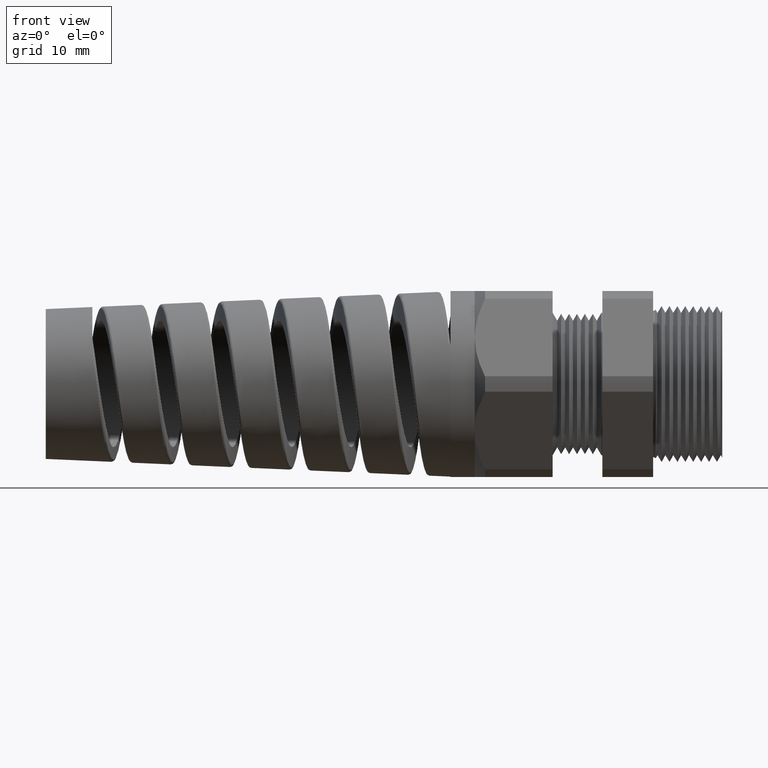
[diagram: clean part render]
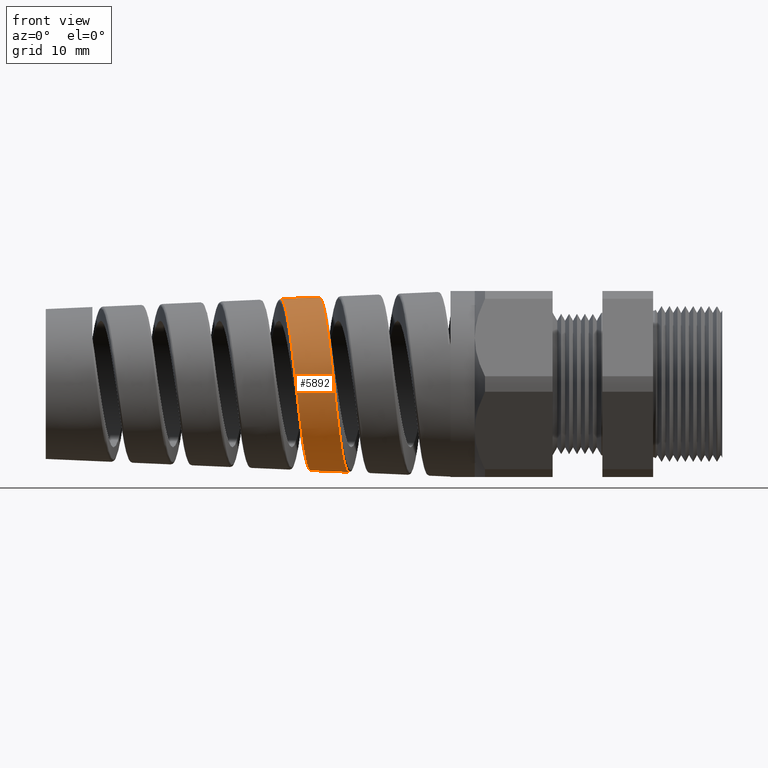
[diagram: same view with one face highlighted and labeled with its STEP entity id]
A machine part, front view. The second image highlights one B-rep face of the part: STEP entity #5892.
In plain terms, the highlighted conical surface has half-angle 2.5 deg.
Its self-contained STEP definition (entity closure, byte-faithful):
#3026 = DIRECTION ( 'NONE',  ( 0.9990482215818576900, 5.341834311772762600E-018, 0.04361938736533631900 ) ) ;
#3027 = VECTOR ( 'NONE', #3026, 39.37007874015748100 ) ;
#3028 = CARTESIAN_POINT ( 'NONE',  ( -1.290000000000000300, 5.755839955992558400E-017, 0.4699999999999998600 ) ) ;
#3029 = LINE ( 'NONE', #3028, #3027 ) ;
#3030 = CARTESIAN_POINT ( 'NONE',  ( -2.190422081872461600, 1.184146767082549900E-015, 0.4306867228898024200 ) ) ;
#3032 = CARTESIAN_POINT ( 'NONE',  ( -1.998019104592909700, 7.933944651903205000E-017, 0.4390872182962327600 ) ) ;
#3037 = CARTESIAN_POINT ( 'NONE',  ( -2.040376159136990000, -4.913763605612225300E-013, -0.4372378693560109400 ) ) ;
#3060 = DIRECTION ( 'NONE',  ( 0.9990482215818576900, 0.0000000000000000000, -0.04361938736533631900 ) ) ;
#3061 = VECTOR ( 'NONE', #3060, 39.37007874015748100 ) ;
#3062 = CARTESIAN_POINT ( 'NONE',  ( -1.290000000000000300, 0.0000000000000000000, -0.4699999999999998600 ) ) ;
#3066 = LINE ( 'NONE', #3062, #3061 ) ;
#3587 = CARTESIAN_POINT ( 'NONE',  ( -2.108865754335762500, -0.4310992905353262500, -0.05938815593787732200 ) ) ;
#3588 = CARTESIAN_POINT ( 'NONE',  ( -2.111962484405446500, -0.4339242168521358400, -0.03124277110531223400 ) ) ;
#3589 = CARTESIAN_POINT ( 'NONE',  ( -2.116667477873672700, -0.4339880762209120700, 0.01152242108114413500 ) ) ;
#3590 = CARTESIAN_POINT ( 'NONE',  ( -2.118249286401795700, -0.4332975927486118500, 0.02589861055870568800 ) ) ;
#3591 = CARTESIAN_POINT ( 'NONE',  ( -2.121380137784178100, -0.4305350802282675300, 0.05420791046270152800 ) ) ;
#3592 = CARTESIAN_POINT ( 'NONE',  ( -2.124495181993542000, -0.4263985499385738500, 0.08222876221542883800 ) ) ;
#3593 = CARTESIAN_POINT ( 'NONE',  ( -2.127609292634403500, -0.4195622912235754700, 0.1096794502603256500 ) ) ;
#3594 = CARTESIAN_POINT ( 'NONE',  ( -2.130737394845184900, -0.4113616899772706300, 0.1368403622550556900 ) ) ;
#3595 = CARTESIAN_POINT ( 'NONE',  ( -2.132314271634450500, -0.4065587408215783900, 0.1503247407683145400 ) ) ;
#3596 = CARTESIAN_POINT ( 'NONE',  ( -2.137047800702293700, -0.3901609194360512500, 0.1899923406717662600 ) ) ;
#3597 = CARTESIAN_POINT ( 'NONE',  ( -2.140156315622508700, -0.3768007105333035500, 0.2149604799724025800 ) ) ;
#3598 = CARTESIAN_POINT ( 'NONE',  ( -2.144838974379418900, -0.3532408253519021500, 0.2502605943913297500 ) ) ;
#3599 = CARTESIAN_POINT ( 'NONE',  ( -2.146403045383445300, -0.3447966953466810600, 0.2616660443374256900 ) ) ;
#3600 = CARTESIAN_POINT ( 'NONE',  ( -2.149553490386110000, -0.3266958687762742700, 0.2837334951669848200 ) ) ;
#3601 = CARTESIAN_POINT ( 'NONE',  ( -2.151139048673719900, -0.3170365086425141500, 0.2943825828929009200 ) ) ;
#3602 = CARTESIAN_POINT ( 'NONE',  ( -2.155847862602705300, -0.2868757902276800100, 0.3245049161933941100 ) ) ;
#3603 = CARTESIAN_POINT ( 'NONE',  ( -2.158959333572341600, -0.2650068624553128000, 0.3424234415652227000 ) ) ;
#3604 = CARTESIAN_POINT ( 'NONE',  ( -2.163670311685681900, -0.2295721379596030700, 0.3660556015992726400 ) ) ;
#3605 = CARTESIAN_POINT ( 'NONE',  ( -2.165255746754934500, -0.2172532667753416800, 0.3734218222097883100 ) ) ;
#3606 = CARTESIAN_POINT ( 'NONE',  ( -2.168416906576895500, -0.1920282746732975800, 0.3868446853781976100 ) ) ;
#3607 = CARTESIAN_POINT ( 'NONE',  ( -2.169986297097260300, -0.1791746372514615400, 0.3928830782137036600 ) ) ;
#3608 = CARTESIAN_POINT ( 'NONE',  ( -2.174684075409793600, -0.1399126208832450500, 0.4090341008594480200 ) ) ;
#3609 = CARTESIAN_POINT ( 'NONE',  ( -2.177801617049919300, -0.1128097801967371400, 0.4172013662084843000 ) ) ;
#3610 = CARTESIAN_POINT ( 'NONE',  ( -2.182551269234198600, -0.07073011138817542100, 0.4254276551805641300 ) ) ;
#3611 = CARTESIAN_POINT ( 'NONE',  ( -2.184139056873407800, -0.05653242180804959900, 0.4274727720997129600 ) ) ;
#3612 = CARTESIAN_POINT ( 'NONE',  ( -2.187286576149573700, -0.02826916001122227500, 0.4301294114469355100 ) ) ;
#3613 = CARTESIAN_POINT ( 'NONE',  ( -2.188854006380488700, -0.01413529792869920200, 0.4307551865443337600 ) ) ;
#3614 = CARTESIAN_POINT ( 'NONE',  ( -2.190422081872461600, 1.184146767082549900E-015, 0.4306867228898024200 ) ) ;
#3615 = B_SPLINE_CURVE_WITH_KNOTS ( 'NONE', 3,
 ( #3614, #3613, #3612, #3611, #3610, #3609, #3608, #3607, #3606, #3605, #3604, #3603, #3602, #3601, #3600, #3599, #3598, #3597, #3596, #3595, #3594, #3593, #3592, #3591, #3590, #3589, #3588, #3587, #3661, #3660, #3659, #3658, #3657, #3656, #3655, #3654, #3653, #3652, #3651, #3650, #3649, #3648, #3647, #3646, #3645, #3644, #3643 ),
 .UNSPECIFIED., .F., .F.,
 ( 4, 2, 2, 2, 2, 2, 2, 2, 2, 2, 2, 1, 2, 2, 2, 2, 2, 2, 2, 2, 2, 2, 2, 4 ),
 ( 0.2109298441767726300, 0.2120282145463552600, 0.2131265849159378600, 0.2153233256551031200, 0.2164216960246857500, 0.2175200663942683500, 0.2197168071334336100, 0.2208151775030162100, 0.2219135478725988400, 0.2241102886117640700, 0.2252086589813467000, 0.2263070293509293300, 0.2274053997205119400, 0.2285037700900945700, 0.2307005108292598000, 0.2328972515684250600, 0.2350939923075902900, 0.2361923626771728900, 0.2372907330467555200, 0.2394874737859207500, 0.2416842145250859800, 0.2427825848946686100, 0.2438809552642512400, 0.2460776960034164700 ),
 .UNSPECIFIED. ) ;
#3616 = DIRECTION ( 'NONE',  ( 0.0000000000000000000, 0.0000000000000000000, -1.000000000000000000 ) ) ;
#3617 = DIRECTION ( 'NONE',  ( 1.000000000000000000, 0.0000000000000000000, 0.0000000000000000000 ) ) ;
#3618 = AXIS2_PLACEMENT_3D ( 'NONE', #3619, #3617, #3616 ) ;
#3619 = CARTESIAN_POINT ( 'NONE',  ( -1.290000000000000300, 0.0000000000000000000, 0.0000000000000000000 ) ) ;
#3620 = CONICAL_SURFACE ( 'NONE', #3618, 0.4699999999999998600, 0.04363323129985855600 ) ;
#3621 = FACE_OUTER_BOUND ( 'NONE', #5893, .T. ) ;
#3622 = CARTESIAN_POINT ( 'NONE',  ( -1.897797244332209300, -0.3830914574320719000, -0.2238524883016141400 ) ) ;
#3623 = CARTESIAN_POINT ( 'NONE',  ( -1.896245679013693700, -0.3756682976446125700, -0.2362211568054130600 ) ) ;
#3624 = CARTESIAN_POINT ( 'NONE',  ( -1.893144867146033600, -0.3596576736896838200, -0.2601798899277995000 ) ) ;
#3625 = CARTESIAN_POINT ( 'NONE',  ( -1.891594904533656600, -0.3510702741025748000, -0.2717699045867033600 ) ) ;
#3626 = CARTESIAN_POINT ( 'NONE',  ( -1.888481408340720400, -0.3327163368546226000, -0.2941593391284260700 ) ) ;
#3627 = CARTESIAN_POINT ( 'NONE',  ( -1.886909655005089900, -0.3228939517042446700, -0.3050126219308472700 ) ) ;
#3628 = CARTESIAN_POINT ( 'NONE',  ( -1.882216081190516600, -0.2920232533576184700, -0.3359068590343412000 ) ) ;
#3629 = CARTESIAN_POINT ( 'NONE',  ( -1.879132593738874100, -0.2697243982762036500, -0.3542090789934123100 ) ) ;
#3630 = CARTESIAN_POINT ( 'NONE',  ( -1.874484044041750700, -0.2337777799055847400, -0.3783111318119861100 ) ) ;
#3631 = CARTESIAN_POINT ( 'NONE',  ( -1.872930761560817900, -0.2213762358437757200, -0.3857826746174919900 ) ) ;
#3632 = CARTESIAN_POINT ( 'NONE',  ( -1.869801860592672900, -0.1957115818841674800, -0.3995674730077413100 ) ) ;
#3633 = CARTESIAN_POINT ( 'NONE',  ( -1.868233117675882600, -0.1825017144034997200, -0.4058428936238197000 ) ) ;
#3634 = CARTESIAN_POINT ( 'NONE',  ( -1.863573674052380100, -0.1424290013263452600, -0.4225381395353592900 ) ) ;
#3635 = CARTESIAN_POINT ( 'NONE',  ( -1.860497873781145900, -0.1148769116553653300, -0.4309855771844385800 ) ) ;
#3636 = CARTESIAN_POINT ( 'NONE',  ( -1.855841701001245100, -0.07230080561659504900, -0.4396245785010841600 ) ) ;
#3637 = CARTESIAN_POINT ( 'NONE',  ( -1.854274033054280800, -0.05781901737073555400, -0.4418338066868220900 ) ) ;
#3638 = CARTESIAN_POINT ( 'NONE',  ( -1.851156667676193200, -0.02886951552427196400, -0.4448010289046774900 ) ) ;
#3639 = CARTESIAN_POINT ( 'NONE',  ( -1.849608877248128500, -0.01442139778854340800, -0.4455669487593731900 ) ) ;
#3640 = CARTESIAN_POINT ( 'NONE',  ( -1.848064262452146400, 2.160691810554977100E-014, -0.4456343880977956000 ) ) ;
#3641 = B_SPLINE_CURVE_WITH_KNOTS ( 'NONE', 3,
 ( #3640, #3639, #3638, #3637, #3636, #3635, #3634, #3633, #3632, #3631, #3630, #3629, #3628, #3627, #3626, #3625, #3624, #3623, #3622, #3698, #3697, #3696, #3695, #3694, #3693, #3692, #3691, #3690, #3689, #3688, #3687, #3686, #3685, #3684, #3683, #3682, #3681, #3680, #3679, #3678, #3677, #3676, #3675, #3674, #3673, #3672, #3671, #3670, #3669 ),
 .UNSPECIFIED., .F., .F.,
 ( 4, 2, 2, 2, 2, 2, 2, 2, 2, 2, 2, 2, 2, 2, 2, 2, 2, 2, 2, 1, 2, 2, 2, 2, 4 ),
 ( 0.1238808187226605600, 0.1249976599628686300, 0.1261145012030767100, 0.1283481836834928500, 0.1294650249237009300, 0.1305818661639089900, 0.1328155486443251300, 0.1339323898845332100, 0.1350492311247412600, 0.1361660723649493500, 0.1372829136051574000, 0.1395165960855735400, 0.1406334373257816200, 0.1417502785659897100, 0.1439839610464058200, 0.1451008022866139000, 0.1462176435268219800, 0.1484513260072380900, 0.1495681672474461800, 0.1506850084876542600, 0.1518018497278623100, 0.1529186909680704000, 0.1551523734484865400, 0.1573860559289027000, 0.1596197384093188400 ),
 .UNSPECIFIED. ) ;
#3643 = CARTESIAN_POINT ( 'NONE',  ( -2.040376159136990000, -4.913763605612225300E-013, -0.4372378693560109400 ) ) ;
#3644 = CARTESIAN_POINT ( 'NONE',  ( -2.043473526060082300, -0.02834744629023139600, -0.4371026353955830800 ) ) ;
#3645 = CARTESIAN_POINT ( 'NONE',  ( -2.046550857976487100, -0.05648209456167485600, -0.4342371379173405300 ) ) ;
#3646 = CARTESIAN_POINT ( 'NONE',  ( -2.051221057788517900, -0.09835098615755383200, -0.4257850517702841400 ) ) ;
#3647 = CARTESIAN_POINT ( 'NONE',  ( -2.052793825529178700, -0.1123084165898846400, -0.4222472101277439100 ) ) ;
#3648 = CARTESIAN_POINT ( 'NONE',  ( -2.055908398427223300, -0.1395372707298241400, -0.4139039588735228800 ) ) ;
#3649 = CARTESIAN_POINT ( 'NONE',  ( -2.057456675387896400, -0.1528680751963904800, -0.4090924688434561300 ) ) ;
#3650 = CARTESIAN_POINT ( 'NONE',  ( -2.062097206021390200, -0.1920246321290952600, -0.3927782903105313000 ) ) ;
#3651 = CARTESIAN_POINT ( 'NONE',  ( -2.065186144707972900, -0.2170330741961299700, -0.3794069997954743200 ) ) ;
#3652 = CARTESIAN_POINT ( 'NONE',  ( -2.071469056022510600, -0.2646841584728766300, -0.3474997961162145700 ) ) ;
#3653 = CARTESIAN_POINT ( 'NONE',  ( -2.074561976381311000, -0.2865591116136287900, -0.3294808561573690000 ) ) ;
#3654 = CARTESIAN_POINT ( 'NONE',  ( -2.079213254212247000, -0.3165547028918411200, -0.2994830280777313600 ) ) ;
#3655 = CARTESIAN_POINT ( 'NONE',  ( -2.080766037694008000, -0.3260803118794010600, -0.2889852715372469000 ) ) ;
#3656 = CARTESIAN_POINT ( 'NONE',  ( -2.083890658085744800, -0.3441632279469792300, -0.2669714027584868000 ) ) ;
#3657 = CARTESIAN_POINT ( 'NONE',  ( -2.085468074446126300, -0.3527434249497212700, -0.2554091389000581200 ) ) ;
#3658 = CARTESIAN_POINT ( 'NONE',  ( -2.090152155331307600, -0.3764704433747955700, -0.2199122918297461700 ) ) ;
#3659 = CARTESIAN_POINT ( 'NONE',  ( -2.093240754587790200, -0.3898095828643682900, -0.1949780560426715200 ) ) ;
#3660 = CARTESIAN_POINT ( 'NONE',  ( -2.099471096189924800, -0.4115753395879837000, -0.1426083645388869800 ) ) ;
#3661 = CARTESIAN_POINT ( 'NONE',  ( -2.102635861351958000, -0.4199953469103889200, -0.1149511513593063900 ) ) ;
#3669 = CARTESIAN_POINT ( 'NONE',  ( -1.998019104592909700, 7.933944651903205000E-017, 0.4390872182962327600 ) ) ;
#3670 = CARTESIAN_POINT ( 'NONE',  ( -1.994863412549371400, -0.02903934621929113400, 0.4392249987863825500 ) ) ;
#3671 = CARTESIAN_POINT ( 'NONE',  ( -1.991747098194856800, -0.05773769788982261600, 0.4365078272464442100 ) ) ;
#3672 = CARTESIAN_POINT ( 'NONE',  ( -1.985469803185996800, -0.1144502964146840600, 0.4254582981259475400 ) ) ;
#3673 = CARTESIAN_POINT ( 'NONE',  ( -1.982284221120866700, -0.1426780747608516200, 0.4169875963303497100 ) ) ;
#3674 = CARTESIAN_POINT ( 'NONE',  ( -1.976015831075534700, -0.1960985476370738500, 0.3949960015039624700 ) ) ;
#3675 = CARTESIAN_POINT ( 'NONE',  ( -1.972905352216959100, -0.2215561290295701700, 0.3814685794800322700 ) ) ;
#3676 = CARTESIAN_POINT ( 'NONE',  ( -1.968183956321638300, -0.2578247211151324400, 0.3573241621546475700 ) ) ;
#3677 = CARTESIAN_POINT ( 'NONE',  ( -1.966596141589393100, -0.2696205390350691600, 0.3485962018520391600 ) ) ;
#3678 = CARTESIAN_POINT ( 'NONE',  ( -1.963454288810870600, -0.2920517367334055600, 0.3302138549235088500 ) ) ;
#3679 = CARTESIAN_POINT ( 'NONE',  ( -1.960329934894562600, -0.3134526515968568700, 0.3108290532225243500 ) ) ;
#3680 = CARTESIAN_POINT ( 'NONE',  ( -1.957210245288841100, -0.3328300366822759000, 0.2894798823466223600 ) ) ;
#3681 = CARTESIAN_POINT ( 'NONE',  ( -1.954078936789336300, -0.3511851287671257600, 0.2671404260040941600 ) ) ;
#3682 = CARTESIAN_POINT ( 'NONE',  ( -1.952502829305084800, -0.3598775921279531700, 0.2554362088885615600 ) ) ;
#3683 = CARTESIAN_POINT ( 'NONE',  ( -1.947767206724166700, -0.3841880571978362700, 0.2190433250275081500 ) ) ;
#3684 = CARTESIAN_POINT ( 'NONE',  ( -1.944661001460144400, -0.3977597016285890900, 0.1935655111554032700 ) ) ;
#3685 = CARTESIAN_POINT ( 'NONE',  ( -1.939986870618060300, -0.4143000572928926000, 0.1535982283415409700 ) ) ;
#3686 = CARTESIAN_POINT ( 'NONE',  ( -1.938426384734925500, -0.4191727085228920700, 0.1399819181794511300 ) ) ;
#3687 = CARTESIAN_POINT ( 'NONE',  ( -1.935284689509238800, -0.4276033850221615000, 0.1121482650556235600 ) ) ;
#3688 = CARTESIAN_POINT ( 'NONE',  ( -1.933703024479493300, -0.4311520753646450600, 0.09792453811953562300 ) ) ;
#3689 = CARTESIAN_POINT ( 'NONE',  ( -1.929008378036065200, -0.4395850172967311100, 0.05529102728290189600 ) ) ;
#3690 = CARTESIAN_POINT ( 'NONE',  ( -1.925910125059308000, -0.4423815165797149700, 0.02660921111258936200 ) ) ;
#3691 = CARTESIAN_POINT ( 'NONE',  ( -1.921227032899781400, -0.4423578927659601000, -0.01679189106323614500 ) ) ;
#3692 = CARTESIAN_POINT ( 'NONE',  ( -1.919652120562581200, -0.4416344361615390800, -0.03139036692001968800 ) ) ;
#3693 = CARTESIAN_POINT ( 'NONE',  ( -1.916509659844907200, -0.4387493853355358700, -0.06038835087107172200 ) ) ;
#3694 = CARTESIAN_POINT ( 'NONE',  ( -1.914950600494859800, -0.4366032626192339900, -0.07470932806558983100 ) ) ;
#3695 = CARTESIAN_POINT ( 'NONE',  ( -1.910286405070826800, -0.4281170203554074400, -0.1171516263103397600 ) ) ;
#3696 = CARTESIAN_POINT ( 'NONE',  ( -1.907194465937841500, -0.4197481450233409600, -0.1447572119861761700 ) ) ;
#3697 = CARTESIAN_POINT ( 'NONE',  ( -1.902490848872437200, -0.4030252227597681500, -0.1850952503532567500 ) ) ;
#3698 = CARTESIAN_POINT ( 'NONE',  ( -1.900915598586410300, -0.3967555519793755600, -0.1983262376928647000 ) ) ;
#3941 = CARTESIAN_POINT ( 'NONE',  ( -1.848064262452146400, 2.160691810554977100E-014, -0.4456343880977956000 ) ) ;
#5811 = VERTEX_POINT ( 'NONE', #3037 ) ;
#5814 = VERTEX_POINT ( 'NONE', #3032 ) ;
#5817 = VERTEX_POINT ( 'NONE', #3030 ) ;
#5818 = EDGE_CURVE ( 'NONE', #5817, #5814, #3029, .T. ) ;
#5850 = EDGE_CURVE ( 'NONE', #5811, #5929, #3066, .T. ) ;
#5892 = ADVANCED_FACE ( 'NONE', ( #3621 ), #3620, .T. ) ;
#5893 = EDGE_LOOP ( 'NONE', ( #5894, #5895, #5897, #5898 ) ) ;
#5894 = ORIENTED_EDGE ( 'NONE', *, *, #5818, .F. ) ;
#5895 = ORIENTED_EDGE ( 'NONE', *, *, #5896, .T. ) ;
#5896 = EDGE_CURVE ( 'NONE', #5817, #5811, #3615, .T. ) ;
#5897 = ORIENTED_EDGE ( 'NONE', *, *, #5850, .T. ) ;
#5898 = ORIENTED_EDGE ( 'NONE', *, *, #5899, .T. ) ;
#5899 = EDGE_CURVE ( 'NONE', #5929, #5814, #3641, .T. ) ;
#5929 = VERTEX_POINT ( 'NONE', #3941 ) ;